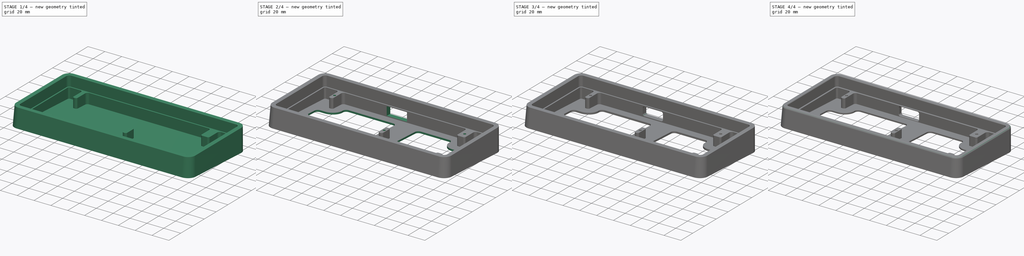
[diagram: build sequence overview — one tinted view per stage of 4, left to right]
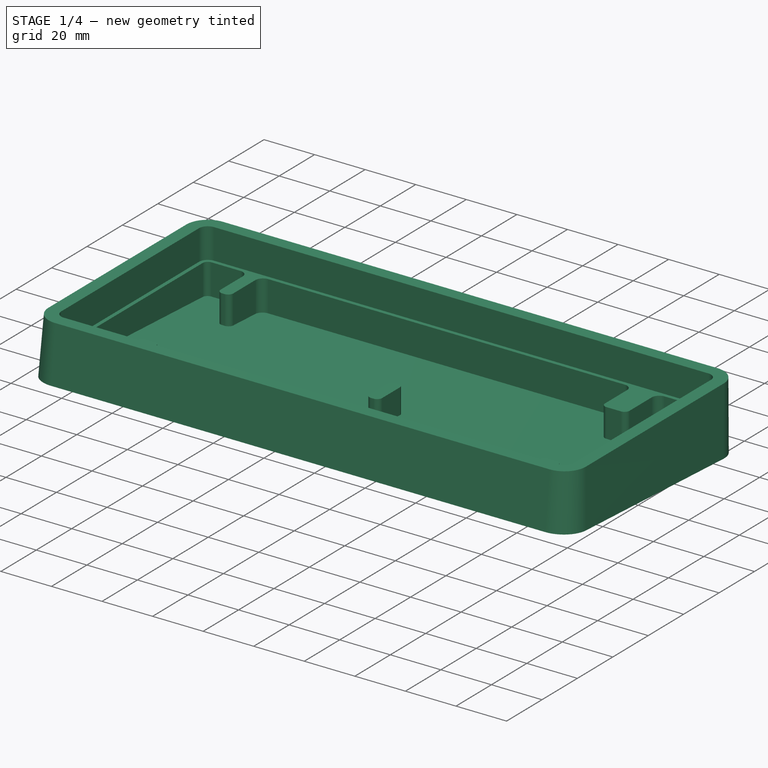
[diagram: stage 1 of 4 — iso view after this stage's code; geometry added in this stage tinted green]
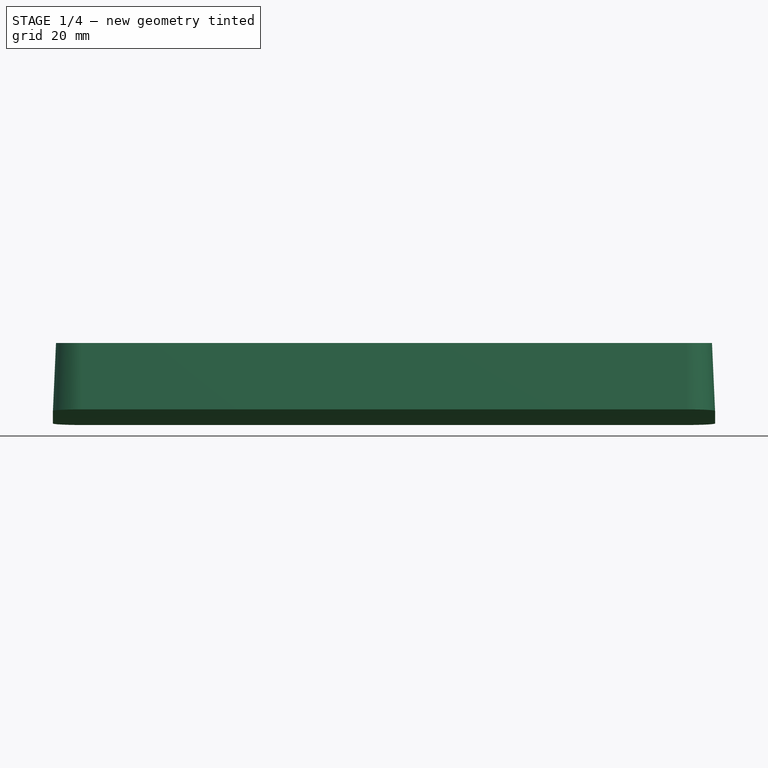
[diagram: stage 1 of 4 — front view after this stage's code; geometry added in this stage tinted green]
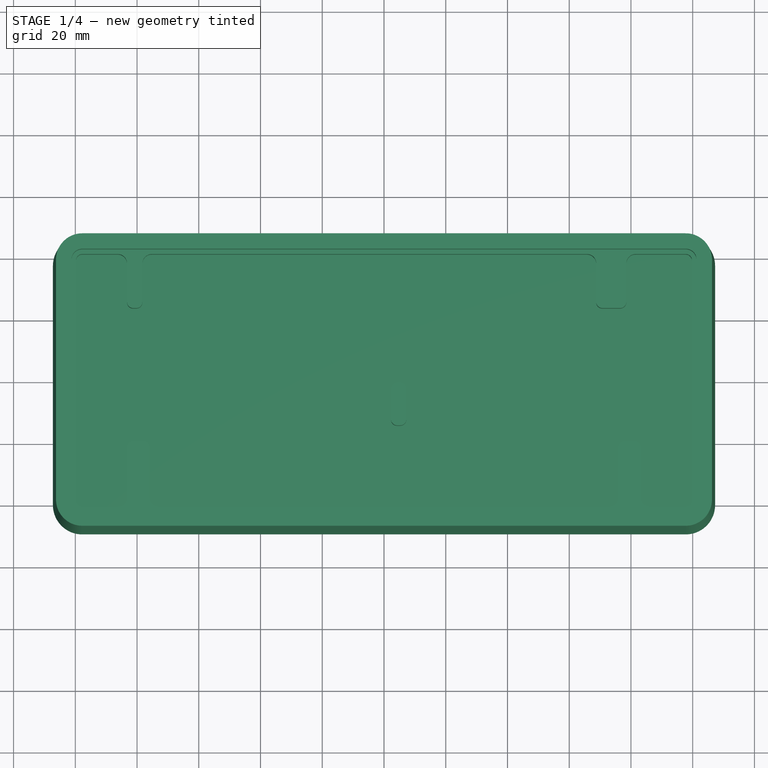
[diagram: stage 1 of 4 — top view after this stage's code; geometry added in this stage tinted green]
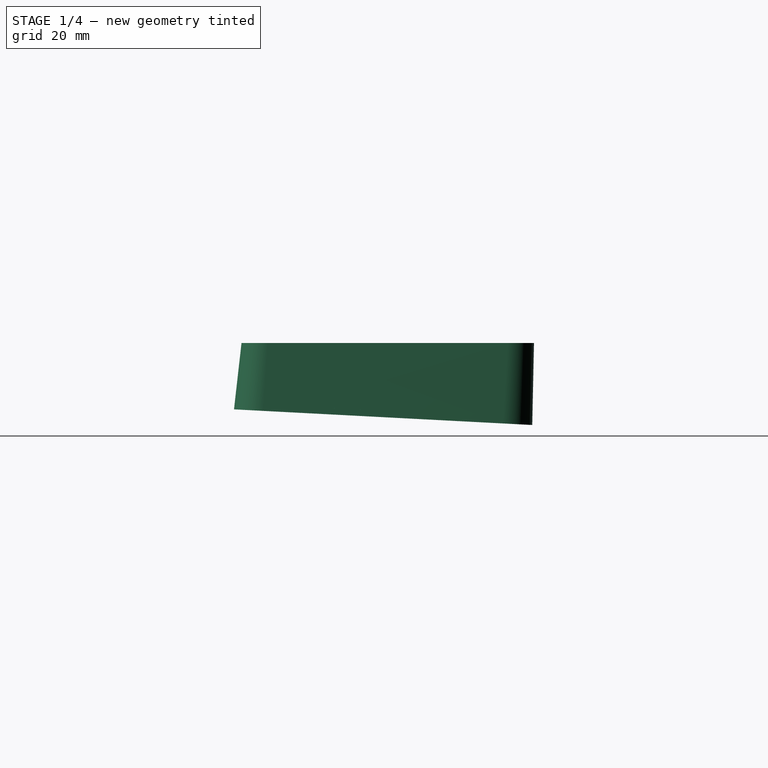
[diagram: stage 1 of 4 — right view after this stage's code; geometry added in this stage tinted green]
FCSTD DOCUMENT  (FreeCAD 0.20R)
Label: case
License: All rights reserved
LicenseURL: http://en.wikipedia.org/wiki/All_rights_reserved
objects: Sketcher::SketchObject×7, PartDesign::Pocket×4, PartDesign::Fillet×4, PartDesign::AdditiveLoft×1, PartDesign::Hole×1, PartDesign::Chamfer×1, PartDesign::Body×1
note: 30 computed .brp shape members not serialized (recipe doc carries the construction recipe); baked Part::Feature solids carry a one-line shape summary decoded from their .brp

FEATURE [Sketcher::SketchObject] Sketch
  AttachmentOffset = pos=(0,-1.5,0) rot=(1,0,0;-0.05236rad)
  FullyConstrained = false
  MapMode = 5
  Placement = pos=(0,-1.5,0) rot=(1,0,0;6.23083rad)
  Support = -> [XY_Plane]
  sketch-geometry (8):
    g0: ArcOfCircle CenterX=97.75 CenterY=39.375 CenterZ=0 NormalX=0 NormalY=0 NormalZ=1 AngleXU=0 Radius=9.5 StartAngle=0 EndAngle=1.5708
    g1: LineSegment StartX=-97.75 StartY=48.875 StartZ=0 EndX=97.75 EndY=48.875 EndZ=0
    g2: LineSegment StartX=107.25 StartY=-38.375 StartZ=0 EndX=107.25 EndY=39.375 EndZ=0
    g3: ArcOfCircle CenterX=97.75 CenterY=-38.375 CenterZ=0 NormalX=0 NormalY=0 NormalZ=1 AngleXU=0 Radius=9.5 StartAngle=4.71239 EndAngle=6.28319
    g4: LineSegment StartX=-97.75 StartY=-47.875 StartZ=0 EndX=97.75 EndY=-47.875 EndZ=0
    g5: ArcOfCircle CenterX=-97.75 CenterY=-38.375 CenterZ=0 NormalX=0 NormalY=0 NormalZ=1 AngleXU=0 Radius=9.5 StartAngle=3.14159 EndAngle=4.71239
    g6: LineSegment StartX=-107.25 StartY=-38.375 StartZ=0 EndX=-107.25 EndY=39.375 EndZ=0
    g7: ArcOfCircle CenterX=-97.75 CenterY=39.375 CenterZ=0 NormalX=0 NormalY=0 NormalZ=1 AngleXU=0 Radius=9.5 StartAngle=1.5708 EndAngle=3.14159
  constraints (8):
    c: Coincident(g5,g6)
    c: Coincident(g6,g7)
    c: Coincident(g4,g5)
    c: Coincident(g1,g7)
    c: Coincident(g3,g4)
    c: Coincident(g0,g1)
    c: Coincident(g2,g3)
    c: Coincident(g0,g2)
FEATURE [Sketcher::SketchObject] Sketch001
  AttachmentOffset = pos=(0,0,24) rot=(1,0,0;0rad)
  FullyConstrained = false
  MapMode = 5
  Placement = pos=(0,0,24) rot=(0,0,1;0rad)
  Support = -> [XY_Plane]
  sketch-geometry (8):
    g0: LineSegment StartX=-97.75 StartY=47.875 StartZ=0 EndX=97.75 EndY=47.875 EndZ=0
    g1: ArcOfCircle CenterX=-97.75 CenterY=39.375 CenterZ=0 NormalX=0 NormalY=0 NormalZ=1 AngleXU=0 Radius=8.5 StartAngle=1.5708 EndAngle=3.14159
    g2: LineSegment StartX=-106.25 StartY=-38.375 StartZ=0 EndX=-106.25 EndY=39.375 EndZ=0
    g3: ArcOfCircle CenterX=-97.75 CenterY=-38.375 CenterZ=0 NormalX=0 NormalY=0 NormalZ=1 AngleXU=0 Radius=8.5 StartAngle=3.14159 EndAngle=4.71239
    g4: LineSegment StartX=-97.75 StartY=-46.875 StartZ=0 EndX=97.75 EndY=-46.875 EndZ=0
    g5: ArcOfCircle CenterX=97.75 CenterY=-38.375 CenterZ=0 NormalX=0 NormalY=0 NormalZ=1 AngleXU=0 Radius=8.5 StartAngle=4.71239 EndAngle=6.28319
    g6: LineSegment StartX=106.25 StartY=-38.375 StartZ=0 EndX=106.25 EndY=39.375 EndZ=0
    g7: ArcOfCircle CenterX=97.75 CenterY=39.375 CenterZ=0 NormalX=0 NormalY=0 NormalZ=1 AngleXU=0 Radius=8.5 StartAngle=0 EndAngle=1.5708
  constraints (8):
    c: Coincident(g2,g3)
    c: Coincident(g1,g2)
    c: Coincident(g3,g4)
    c: Coincident(g0,g1)
    c: Coincident(g4,g5)
    c: Coincident(g0,g7)
    c: Coincident(g5,g6)
    c: Coincident(g6,g7)
FEATURE [PartDesign::AdditiveLoft] AdditiveLoft
  Closed = true
  Profile = -> Sketch
  Ruled = true
  Sections = -> [Sketch001]
FEATURE [Sketcher::SketchObject] Sketch002
  FullyConstrained = false
  MapMode = 5
  Placement = pos=(0,0,24) rot=(0,0,1;0rad)
  Support = -> [AdditiveLoft]
  sketch-geometry (8):
    g0: LineSegment StartX=-97.75 StartY=42.875 StartZ=0 EndX=97.75 EndY=42.875 EndZ=0
    g1: ArcOfCircle CenterX=97.75 CenterY=39.375 CenterZ=0 NormalX=0 NormalY=0 NormalZ=1 AngleXU=0 Radius=3.5 StartAngle=0 EndAngle=1.5708
    g2: LineSegment StartX=101.25 StartY=-38.375 StartZ=0 EndX=101.25 EndY=39.375 EndZ=0
    g3: ArcOfCircle CenterX=97.75 CenterY=-38.375 CenterZ=0 NormalX=0 NormalY=0 NormalZ=1 AngleXU=0 Radius=3.5 StartAngle=4.71239 EndAngle=6.28319
    g4: LineSegment StartX=-97.75 StartY=-41.875 StartZ=0 EndX=97.75 EndY=-41.875 EndZ=0
    g5: ArcOfCircle CenterX=-97.75 CenterY=-38.375 CenterZ=0 NormalX=0 NormalY=0 NormalZ=1 AngleXU=0 Radius=3.5 StartAngle=3.14159 EndAngle=4.71239
    g6: LineSegment StartX=-101.25 StartY=-38.375 StartZ=0 EndX=-101.25 EndY=39.375 EndZ=0
    g7: ArcOfCircle CenterX=-97.75 CenterY=39.375 CenterZ=0 NormalX=0 NormalY=0 NormalZ=1 AngleXU=0 Radius=3.5 StartAngle=1.5708 EndAngle=3.14159
  constraints (8):
    c: Coincident(g5,g6)
    c: Coincident(g6,g7)
    c: Coincident(g4,g5)
    c: Coincident(g0,g7)
    c: Coincident(g3,g4)
    c: Coincident(g0,g1)
    c: Coincident(g2,g3)
    c: Coincident(g1,g2)
FEATURE [PartDesign::Pocket] Pocket
  BaseFeature = -> AdditiveLoft
  Direction = (0,0,-1)
  Length = 12
  Length2 = 5
  Profile = -> Sketch002
  ReferenceAxis = -> Sketch002 [N_Axis]
  Type = 0
FEATURE [Sketcher::SketchObject] Sketch003
  FullyConstrained = false
  MapMode = 5
  Placement = pos=(0,0,12) rot=(0,0,1;0rad)
  Support = -> [Pocket]
  sketch-geometry (48):
    g0: ArcOfCircle CenterX=97.75 CenterY=39.375 CenterZ=0 NormalX=0 NormalY=0 NormalZ=1 AngleXU=0 Radius=2 StartAngle=0 EndAngle=1.5708
    g1: LineSegment StartX=99.75 StartY=-38.375 StartZ=0 EndX=99.75 EndY=39.375 EndZ=0
    g2: ArcOfCircle CenterX=97.75 CenterY=-38.375 CenterZ=0 NormalX=0 NormalY=0 NormalZ=1 AngleXU=0 Radius=2 StartAngle=4.71239 EndAngle=6.28319
    g3: ArcOfCircle CenterX=-97.75 CenterY=-38.375 CenterZ=0 NormalX=0 NormalY=0 NormalZ=1 AngleXU=0 Radius=2 StartAngle=3.14159 EndAngle=4.71239
    g4: LineSegment StartX=-99.75 StartY=-38.375 StartZ=0 EndX=-99.75 EndY=39.375 EndZ=0
    g5: ArcOfCircle CenterX=-97.75 CenterY=39.375 CenterZ=0 NormalX=0 NormalY=0 NormalZ=1 AngleXU=0 Radius=2 StartAngle=1.5708 EndAngle=3.14159
    g6: LineSegment StartX=-97.75 StartY=41.375 StartZ=0 EndX=-86.25 EndY=41.375 EndZ=0
    g7: ArcOfCircle CenterX=-86.25 CenterY=38.375 CenterZ=0 NormalX=0 NormalY=0 NormalZ=1 AngleXU=0 Radius=3 StartAngle=0 EndAngle=1.5708
    g8: ArcOfCircle CenterX=-75.25 CenterY=38.375 CenterZ=0 NormalX=0 NormalY=0 NormalZ=1 AngleXU=0 Radius=3 StartAngle=1.5708 EndAngle=3.14159
    g9: LineSegment StartX=-78.25 StartY=38.375 StartZ=0 EndX=-78.25 EndY=25.875 EndZ=0
    g10: ArcOfCircle CenterX=-80.25 CenterY=25.875 CenterZ=0 NormalX=0 NormalY=0 NormalZ=1 AngleXU=0 Radius=2 StartAngle=4.71239 EndAngle=6.28319
    g11: LineSegment StartX=-80.25 StartY=23.875 StartZ=0 EndX=-81.25 EndY=23.875 EndZ=0
    g12: LineSegment StartX=-83.25 StartY=25.875 StartZ=0 EndX=-83.25 EndY=38.375 EndZ=0
    g13: ArcOfCircle CenterX=-81.25 CenterY=25.875 CenterZ=0 NormalX=0 NormalY=0 NormalZ=1 AngleXU=0 Radius=2 StartAngle=3.14159 EndAngle=4.71239
    g14: ArcOfCircle CenterX=70.75 CenterY=25.875 CenterZ=0 NormalX=0 NormalY=0 NormalZ=1 AngleXU=0 Radius=2 StartAngle=3.14159 EndAngle=4.71239
    g15: LineSegment StartX=76.5 StartY=23.875 StartZ=0 EndX=70.75 EndY=23.875 EndZ=0
    g16: ArcOfCircle CenterX=76.5 CenterY=25.875 CenterZ=0 NormalX=0 NormalY=0 NormalZ=1 AngleXU=0 Radius=2 StartAngle=4.71239 EndAngle=6.28319
    g17: LineSegment StartX=-75.25 StartY=41.375 StartZ=0 EndX=65.75 EndY=41.375 EndZ=0
    g18: LineSegment StartX=68.75 StartY=25.875 StartZ=0 EndX=68.75 EndY=38.375 EndZ=0
    g19: ArcOfCircle CenterX=65.75 CenterY=38.375 CenterZ=0 NormalX=0 NormalY=0 NormalZ=1 AngleXU=0 Radius=3 StartAngle=0 EndAngle=1.5708
    g20: LineSegment StartX=78.5 StartY=38.375 StartZ=0 EndX=78.5 EndY=25.875 EndZ=0
    g21: LineSegment StartX=81.5 StartY=41.375 StartZ=0 EndX=97.75 EndY=41.375 EndZ=0
    g22: ArcOfCircle CenterX=81.5 CenterY=38.375 CenterZ=0 NormalX=0 NormalY=0 NormalZ=1 AngleXU=0 Radius=3 StartAngle=1.5708 EndAngle=3.14159
    g23: ArcOfCircle CenterX=72.875 CenterY=-37.375 CenterZ=0 NormalX=0 NormalY=0 NormalZ=1 AngleXU=0 Radius=3 StartAngle=4.71239 EndAngle=6.28319
    g24: LineSegment StartX=86.25 StartY=-40.375 StartZ=0 EndX=97.75 EndY=-40.375 EndZ=0
    g25: ArcOfCircle CenterX=86.25 CenterY=-37.375 CenterZ=0 NormalX=0 NormalY=0 NormalZ=1 AngleXU=0 Radius=3 StartAngle=3.14159 EndAngle=4.71239
    g26: LineSegment StartX=75.875 StartY=-37.375 StartZ=0 EndX=75.875 EndY=-21.125 EndZ=0
    g27: ArcOfCircle CenterX=77.875 CenterY=-21.125 CenterZ=0 NormalX=0 NormalY=0 NormalZ=1 AngleXU=0 Radius=2 StartAngle=1.5708 EndAngle=3.14159
    g28: LineSegment StartX=77.875 StartY=-19.125 StartZ=0 EndX=81.25 EndY=-19.125 EndZ=0
    g29: LineSegment StartX=83.25 StartY=-21.125 StartZ=0 EndX=83.25 EndY=-37.375 EndZ=0
    g30: ArcOfCircle CenterX=81.25 CenterY=-21.125 CenterZ=0 NormalX=0 NormalY=0 NormalZ=1 AngleXU=0 Radius=2 StartAngle=0 EndAngle=1.5708
    g31: ArcOfCircle CenterX=-81.25 CenterY=-21.125 CenterZ=0 NormalX=0 NormalY=0 NormalZ=1 AngleXU=0 Radius=2 StartAngle=1.5708 EndAngle=3.14159
    g32: LineSegment StartX=-81.25 StartY=-19.125 StartZ=0 EndX=-77.875 EndY=-19.125 EndZ=0
    g33: ArcOfCircle CenterX=-77.875 CenterY=-21.125 CenterZ=0 NormalX=0 NormalY=0 NormalZ=1 AngleXU=0 Radius=2 StartAngle=0 EndAngle=1.5708
    g34: LineSegment StartX=-97.75 StartY=-40.375 StartZ=0 EndX=-86.25 EndY=-40.375 EndZ=0
    g35: LineSegment StartX=-83.25 StartY=-37.375 StartZ=0 EndX=-83.25 EndY=-21.125 EndZ=0
    g36: ArcOfCircle CenterX=-86.25 CenterY=-37.375 CenterZ=0 NormalX=0 NormalY=0 NormalZ=1 AngleXU=0 Radius=3 StartAngle=4.71239 EndAngle=6.28319
    g37: LineSegment StartX=-75.875 StartY=-21.125 StartZ=0 EndX=-75.875 EndY=-37.375 EndZ=0
    g38: LineSegment StartX=-72.875 StartY=-40.375 StartZ=0 EndX=72.875 EndY=-40.375 EndZ=0
    g39: ArcOfCircle CenterX=-72.875 CenterY=-37.375 CenterZ=0 NormalX=0 NormalY=0 NormalZ=1 AngleXU=0 Radius=3 StartAngle=3.14159 EndAngle=4.71239
    g40: ArcOfCircle CenterX=4.25 CenterY=-2.125 CenterZ=0 NormalX=0 NormalY=0 NormalZ=1 AngleXU=0 Radius=2 StartAngle=1.5708 EndAngle=3.14159
    g41: LineSegment StartX=5.25 StartY=-0.125 StartZ=0 EndX=4.25 EndY=-0.125 EndZ=0
    g42: ArcOfCircle CenterX=5.25 CenterY=-2.125 CenterZ=0 NormalX=0 NormalY=0 NormalZ=1 AngleXU=0 Radius=2 StartAngle=0 EndAngle=1.5708
    g43: LineSegment StartX=7.25 StartY=-12.125 StartZ=0 EndX=7.25 EndY=-2.125 EndZ=0
    g44: ArcOfCircle CenterX=5.25 CenterY=-12.125 CenterZ=0 NormalX=0 NormalY=0 NormalZ=1 AngleXU=0 Radius=2 StartAngle=4.71239 EndAngle=6.28319
    g45: LineSegment StartX=4.25 StartY=-14.125 StartZ=0 EndX=5.25 EndY=-14.125 EndZ=0
    g46: LineSegment StartX=2.25 StartY=-2.125 StartZ=0 EndX=2.25 EndY=-12.125 EndZ=0
    g47: ArcOfCircle CenterX=4.25 CenterY=-12.125 CenterZ=0 NormalX=0 NormalY=0 NormalZ=1 AngleXU=0 Radius=2 StartAngle=3.14159 EndAngle=4.71239
  constraints (48):
    c: Coincident(g3,g4)
    c: Coincident(g4,g5)
    c: Coincident(g3,g34)
    c: Coincident(g5,g6)
    c: Coincident(g34,g36)
    c: Coincident(g6,g7)
    c: Coincident(g35,g36)
    c: Coincident(g31,g35)
    c: Coincident(g12,g13)
    c: Coincident(g7,g12)
    c: Coincident(g31,g32)
    c: Coincident(g11,g13)
    c: Coincident(g10,g11)
    c: Coincident(g9,g10)
    c: Coincident(g8,g9)
    c: Coincident(g32,g33)
    c: Coincident(g37,g39)
    c: Coincident(g33,g37)
    c: Coincident(g8,g17)
    c: Coincident(g38,g39)
    c: Coincident(g46,g47)
    c: Coincident(g40,g46)
    c: Coincident(g45,g47)
    c: Coincident(g40,g41)
    c: Coincident(g44,g45)
    c: Coincident(g41,g42)
    c: Coincident(g43,g44)
    c: Coincident(g42,g43)
    c: Coincident(g17,g19)
    c: Coincident(g14,g18)
    c: Coincident(g18,g19)
    c: Coincident(g14,g15)
    c: Coincident(g23,g38)
    c: Coincident(g23,g26)
    c: Coincident(g26,g27)
    c: Coincident(g15,g16)
    c: Coincident(g27,g28)
    c: Coincident(g16,g20)
    c: Coincident(g20,g22)
    c: Coincident(g28,g30)
    c: Coincident(g21,g22)
    c: Coincident(g25,g29)
    c: Coincident(g29,g30)
    c: Coincident(g24,g25)
    c: Coincident(g2,g24)
    c: Coincident(g0,g21)
    c: Coincident(g1,g2)
    c: Coincident(g0,g1)
FEATURE [PartDesign::Pocket] Pocket001
  BaseFeature = -> Pocket
  Direction = (0,0,-1)
  Length = 0
  Length2 = 5
  Offset = -2
  Profile = -> Sketch003
  ReferenceAxis = -> Sketch003 [N_Axis]
  Type = 3
  UpToFace = -> Pocket [Face1]
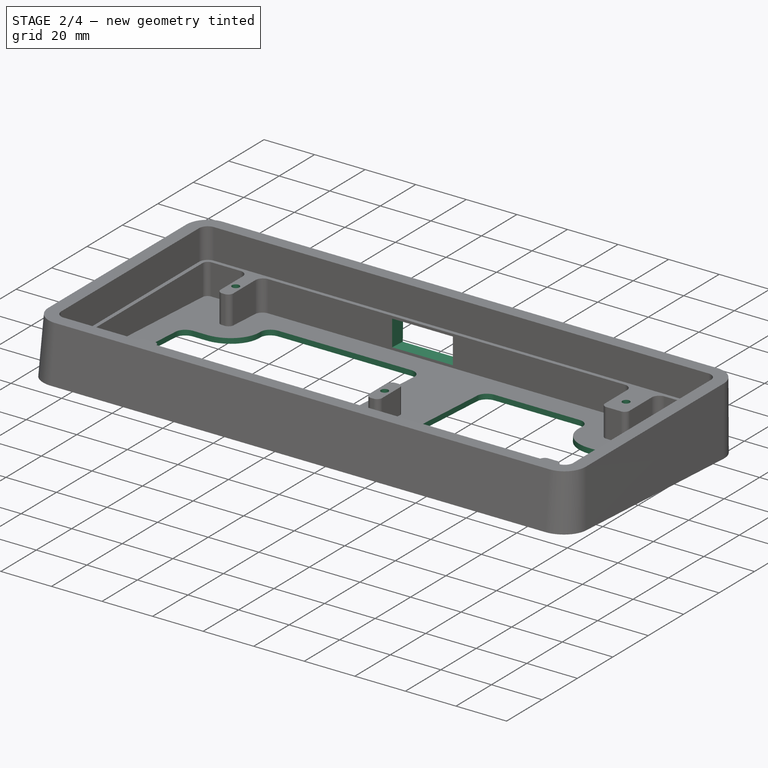
[diagram: stage 2 of 4 — iso view after this stage's code; geometry added in this stage tinted green]
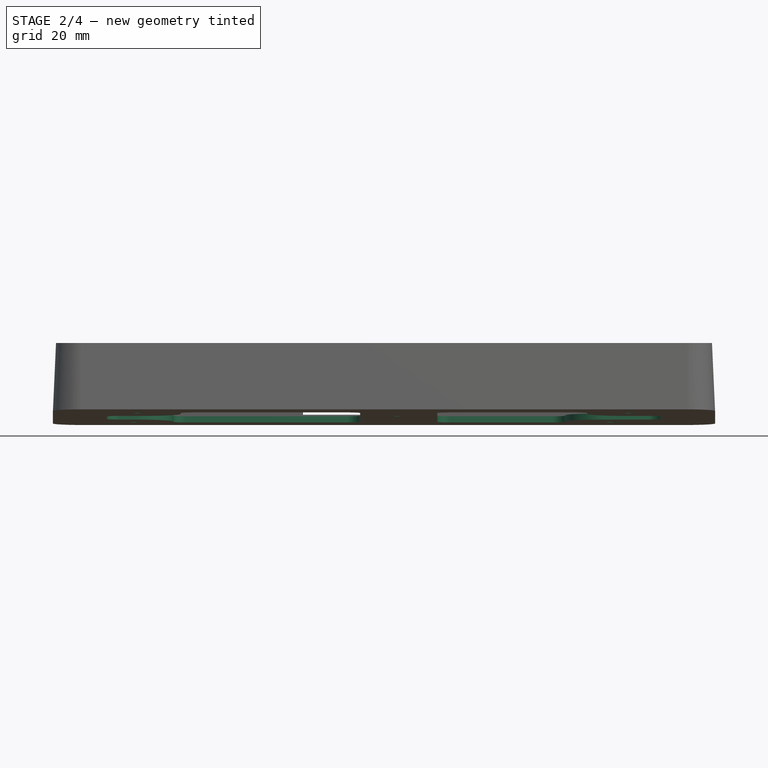
[diagram: stage 2 of 4 — front view after this stage's code; geometry added in this stage tinted green]
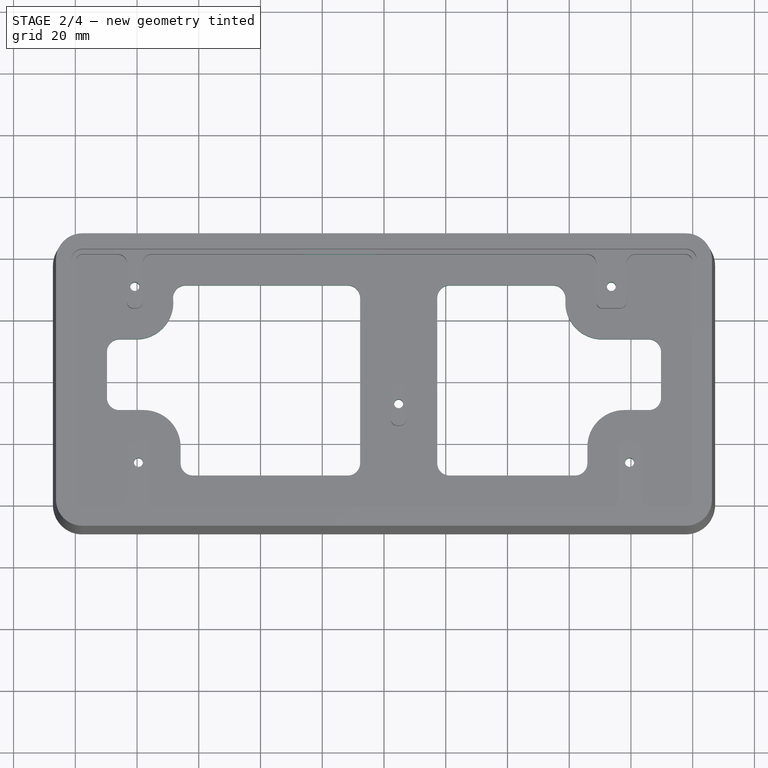
[diagram: stage 2 of 4 — top view after this stage's code; geometry added in this stage tinted green]
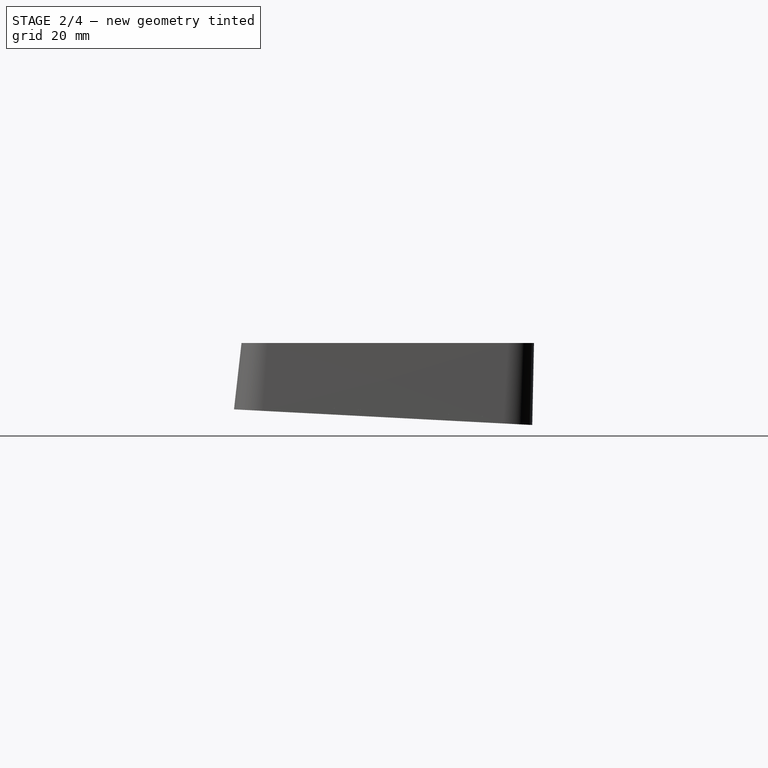
[diagram: stage 2 of 4 — right view after this stage's code; geometry added in this stage tinted green]
FEATURE [Sketcher::SketchObject] Sketch004
  FullyConstrained = false
  MapMode = 5
  Placement = pos=(0,0,12) rot=(0,0,1;0rad)
  Support = -> [Pocket]
  sketch-geometry (5):
    g0: Circle CenterX=4.75 CenterY=-7.125 CenterZ=0 NormalX=0 NormalY=0 NormalZ=-1 AngleXU=0 Radius=1.1
    g1: Circle CenterX=73.625 CenterY=30.875 CenterZ=0 NormalX=0 NormalY=0 NormalZ=-1 AngleXU=0 Radius=1.1
    g2: Circle CenterX=79.5625 CenterY=-26.125 CenterZ=0 NormalX=0 NormalY=0 NormalZ=-1 AngleXU=0 Radius=1.1
    g3: Circle CenterX=-80.75 CenterY=30.875 CenterZ=0 NormalX=0 NormalY=0 NormalZ=-1 AngleXU=0 Radius=1.1
    g4: Circle CenterX=-79.5625 CenterY=-26.125 CenterZ=0 NormalX=0 NormalY=0 NormalZ=-1 AngleXU=0 Radius=1.1
FEATURE [PartDesign::Hole] Hole
  BaseFeature = -> Pocket001
  CustomThreadClearance = 0
  Depth = 25
  DepthType = 0
  Diameter = 2.9
  DrillForDepth = false
  DrillPoint = 1
  DrillPointAngle = 118
  HoleCutCountersinkAngle = 90
  HoleCutCustomValues = false
  HoleCutDepth = 0
  HoleCutDiameter = 6.1
  HoleCutType = 0
  ModelThread = false
  Profile = -> Sketch004
  Tapered = false
  TaperedAngle = 90
  ThreadClass = 0
  ThreadDepth = 25
  ThreadDepthType = 0
  ThreadDirection = 0
  ThreadFit = 0
  ThreadSize = 8
  ThreadType = 1
  Threaded = false
  UseCustomThreadClearance = false
FEATURE [Sketcher::SketchObject] Sketch005
  FullyConstrained = false
  MapMode = 5
  Placement = pos=(0,0.10042,1.91613) rot=(-1,0,0;0.05236rad)
  Support = -> [Hole]
  sketch-geometry (31):
    g0: ArcOfCircle CenterX=-77.875 CenterY=-21.125 CenterZ=0 NormalX=0 NormalY=0 NormalZ=1 AngleXU=0 Radius=12 StartAngle=0 EndAngle=1.5708
    g1: ArcOfCircle CenterX=70.75 CenterY=25.875 CenterZ=0 NormalX=0 NormalY=0 NormalZ=1 AngleXU=0 Radius=12 StartAngle=3.14159 EndAngle=4.71239
    g2: ArcOfCircle CenterX=77.875 CenterY=-21.125 CenterZ=0 NormalX=0 NormalY=0 NormalZ=1 AngleXU=0 Radius=12 StartAngle=1.5708 EndAngle=3.14159
    g3: LineSegment StartX=-77.875 StartY=-9.125 StartZ=0 EndX=-85.75 EndY=-9.125 EndZ=0
    g4: ArcOfCircle CenterX=-85.75 CenterY=-5.125 CenterZ=0 NormalX=0 NormalY=0 NormalZ=1 AngleXU=0 Radius=4 StartAngle=3.14159 EndAngle=4.71239
    g5: LineSegment StartX=-89.75 StartY=-5.125 StartZ=0 EndX=-89.75 EndY=9.875 EndZ=0
    g6: LineSegment StartX=-80.25 StartY=13.875 StartZ=0 EndX=-85.75 EndY=13.875 EndZ=0
    g7: ArcOfCircle CenterX=-85.75 CenterY=9.875 CenterZ=0 NormalX=0 NormalY=0 NormalZ=1 AngleXU=0 Radius=4 StartAngle=1.5708 EndAngle=3.14159
    g8: ArcOfCircle CenterX=-80.25 CenterY=25.875 CenterZ=0 NormalX=0 NormalY=0 NormalZ=1 AngleXU=0 Radius=12 StartAngle=4.71239 EndAngle=6.37707
    g9: ArcOfCircle CenterX=-64.3205 CenterY=27.375 CenterZ=0 NormalX=0 NormalY=0 NormalZ=1 AngleXU=0 Radius=4 StartAngle=1.5708 EndAngle=3.23548
    g10: LineSegment StartX=-65.875 StartY=-21.125 StartZ=0 EndX=-65.875 EndY=-26.375 EndZ=0
    g11: ArcOfCircle CenterX=-61.875 CenterY=-26.375 CenterZ=0 NormalX=0 NormalY=0 NormalZ=1 AngleXU=0 Radius=4 StartAngle=3.14159 EndAngle=4.71239
    g12: LineSegment StartX=58.75 StartY=25.875 StartZ=0 EndX=58.75 EndY=27.375 EndZ=0
    g13: ArcOfCircle CenterX=54.75 CenterY=27.375 CenterZ=0 NormalX=0 NormalY=0 NormalZ=1 AngleXU=0 Radius=4 StartAngle=0 EndAngle=1.5708
    g14: LineSegment StartX=85.75 StartY=13.875 StartZ=0 EndX=70.75 EndY=13.875 EndZ=0
    g15: ArcOfCircle CenterX=85.75 CenterY=9.875 CenterZ=0 NormalX=0 NormalY=0 NormalZ=1 AngleXU=0 Radius=4 StartAngle=0 EndAngle=1.5708
    g16: LineSegment StartX=89.75 StartY=-5.125 StartZ=0 EndX=89.75 EndY=9.875 EndZ=0
    g17: LineSegment StartX=85.75 StartY=-9.125 StartZ=0 EndX=77.875 EndY=-9.125 EndZ=0
    g18: ArcOfCircle CenterX=85.75 CenterY=-5.125 CenterZ=0 NormalX=0 NormalY=0 NormalZ=1 AngleXU=0 Radius=4 StartAngle=4.71239 EndAngle=6.28319
    g19: LineSegment StartX=65.875 StartY=-21.125 StartZ=0 EndX=65.875 EndY=-26.375 EndZ=0
    g20: ArcOfCircle CenterX=61.875 CenterY=-26.375 CenterZ=0 NormalX=0 NormalY=0 NormalZ=1 AngleXU=0 Radius=4 StartAngle=4.71239 EndAngle=6.28319
    g21: LineSegment StartX=21.25 StartY=31.375 StartZ=0 EndX=54.75 EndY=31.375 EndZ=0
    g22: ArcOfCircle CenterX=21.25 CenterY=27.375 CenterZ=0 NormalX=0 NormalY=0 NormalZ=1 AngleXU=0 Radius=4 StartAngle=1.5708 EndAngle=3.14159
    g23: LineSegment StartX=17.25 StartY=-26.375 StartZ=0 EndX=17.25 EndY=27.375 EndZ=0
    g24: LineSegment StartX=21.25 StartY=-30.375 StartZ=0 EndX=61.875 EndY=-30.375 EndZ=0
    g25: ArcOfCircle CenterX=21.25 CenterY=-26.375 CenterZ=0 NormalX=0 NormalY=0 NormalZ=1 AngleXU=0 Radius=4 StartAngle=3.14159 EndAngle=4.71239
    g26: LineSegment StartX=-61.875 StartY=-30.375 StartZ=0 EndX=-11.75 EndY=-30.375 EndZ=0
    g27: ArcOfCircle CenterX=-11.75 CenterY=-26.375 CenterZ=0 NormalX=0 NormalY=0 NormalZ=1 AngleXU=0 Radius=4 StartAngle=4.71239 EndAngle=6.28319
    g28: LineSegment StartX=-64.3205 StartY=31.375 StartZ=0 EndX=-11.75 EndY=31.375 EndZ=0
    g29: LineSegment StartX=-7.75 StartY=27.375 StartZ=0 EndX=-7.75 EndY=-26.375 EndZ=0
    g30: ArcOfCircle CenterX=-11.75 CenterY=27.375 CenterZ=0 NormalX=0 NormalY=0 NormalZ=1 AngleXU=0 Radius=4 StartAngle=0 EndAngle=1.5708
  constraints (31):
    c: Coincident(g4,g5)
    c: Coincident(g5,g7)
    c: Coincident(g3,g4)
    c: Coincident(g6,g7)
    c: Coincident(g6,g8)
    c: Coincident(g0,g3)
    c: Coincident(g8,g9)
    c: Coincident(g10,g11)
    c: Coincident(g0,g10)
    c: Coincident(g9,g28)
    c: Coincident(g11,g26)
    c: Coincident(g26,g27)
    c: Coincident(g28,g30)
    c: Coincident(g27,g29)
    c: Coincident(g29,g30)
    c: Coincident(g23,g25)
    c: Coincident(g22,g23)
    c: Coincident(g24,g25)
    c: Coincident(g21,g22)
    c: Coincident(g13,g21)
    c: Coincident(g1,g12)
    c: Coincident(g12,g13)
    c: Coincident(g20,g24)
    c: Coincident(g19,g20)
    c: Coincident(g2,g19)
    c: Coincident(g1,g14)
    c: Coincident(g2,g17)
    c: Coincident(g17,g18)
    c: Coincident(g14,g15)
    c: Coincident(g16,g18)
    c: Coincident(g15,g16)
FEATURE [PartDesign::Pocket] Pocket002
  BaseFeature = -> Hole
  Direction = (0,-0.052336,-0.99863)
  Length = 5
  Length2 = 5
  Profile = -> Sketch005
  ReferenceAxis = -> Sketch005 [N_Axis]
  Type = 1
FEATURE [Sketcher::SketchObject] Sketch006
  AttachmentOffset = pos=(0,0,-1) rot=(0,0,1;0rad)
  FullyConstrained = false
  MapMode = 5
  Placement = pos=(0,0,11) rot=(0,0,1;0rad)
  Support = -> [Pocket]
  sketch-geometry (4):
    g0: LineSegment StartX=-26.25 StartY=23.875 StartZ=0 EndX=-2.25 EndY=23.875 EndZ=0
    g1: LineSegment StartX=-26.25 StartY=23.875 StartZ=0 EndX=-26.25 EndY=70 EndZ=0
    g2: LineSegment StartX=-2.25 StartY=23.875 StartZ=0 EndX=-2.25 EndY=70 EndZ=0
    g3: LineSegment StartX=-26.25 StartY=70 StartZ=0 EndX=-2.25 EndY=70 EndZ=0
FEATURE [PartDesign::Pocket] Pocket003
  BaseFeature = -> Pocket002
  Direction = (0,0,-1)
  Length = 0
  Length2 = 5
  Offset = -1
  Profile = -> Sketch006
  ReferenceAxis = -> Sketch006 [N_Axis]
  Type = 3
  UpToFace = -> Pocket002 [Face48]
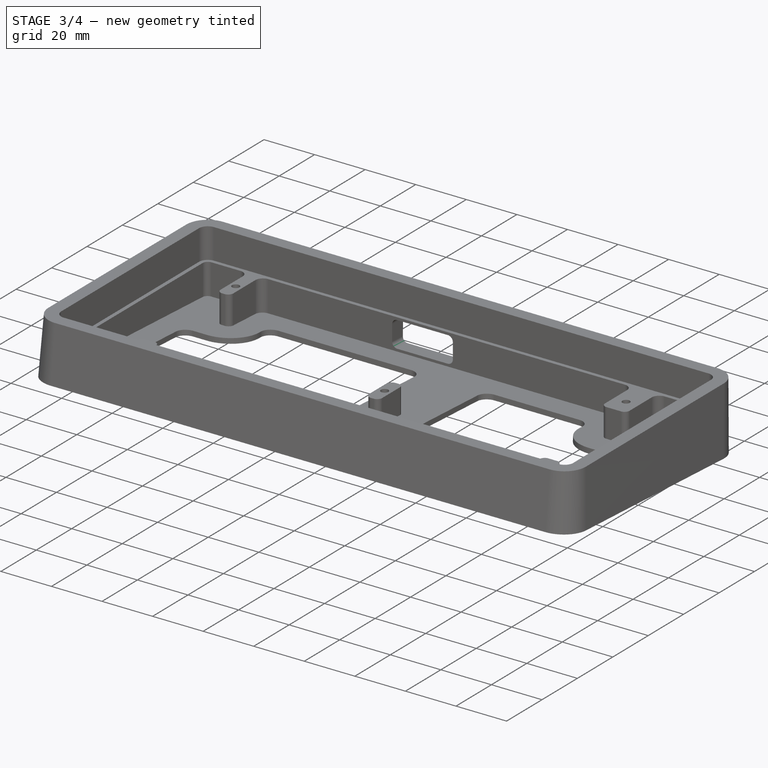
[diagram: stage 3 of 4 — iso view after this stage's code; geometry added in this stage tinted green]
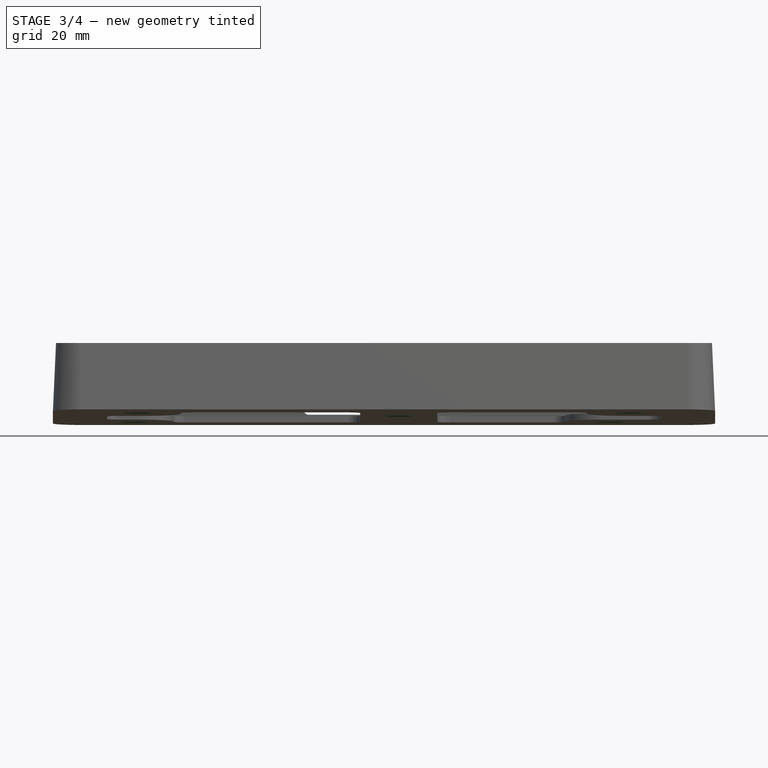
[diagram: stage 3 of 4 — front view after this stage's code; geometry added in this stage tinted green]
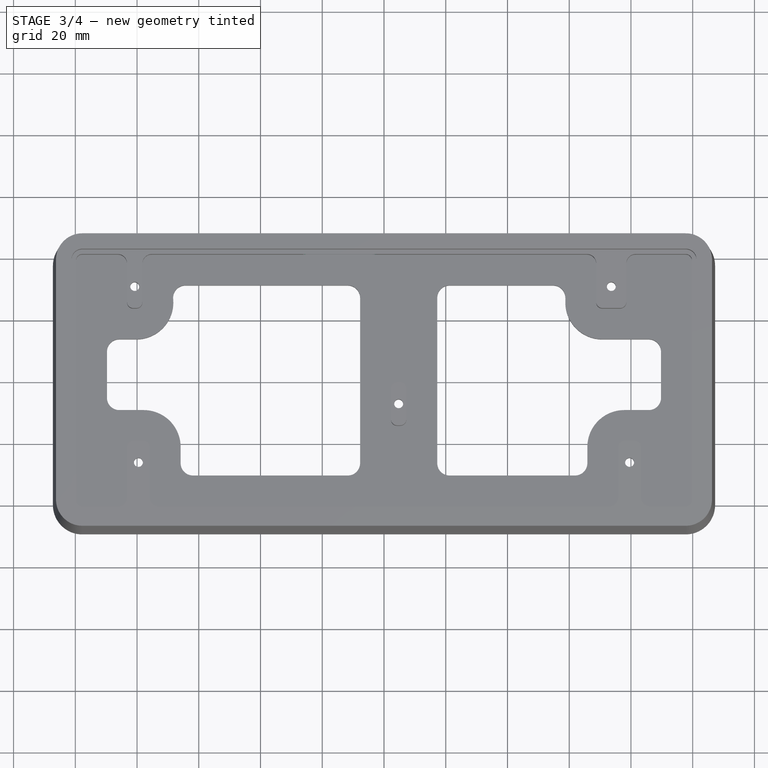
[diagram: stage 3 of 4 — top view after this stage's code; geometry added in this stage tinted green]
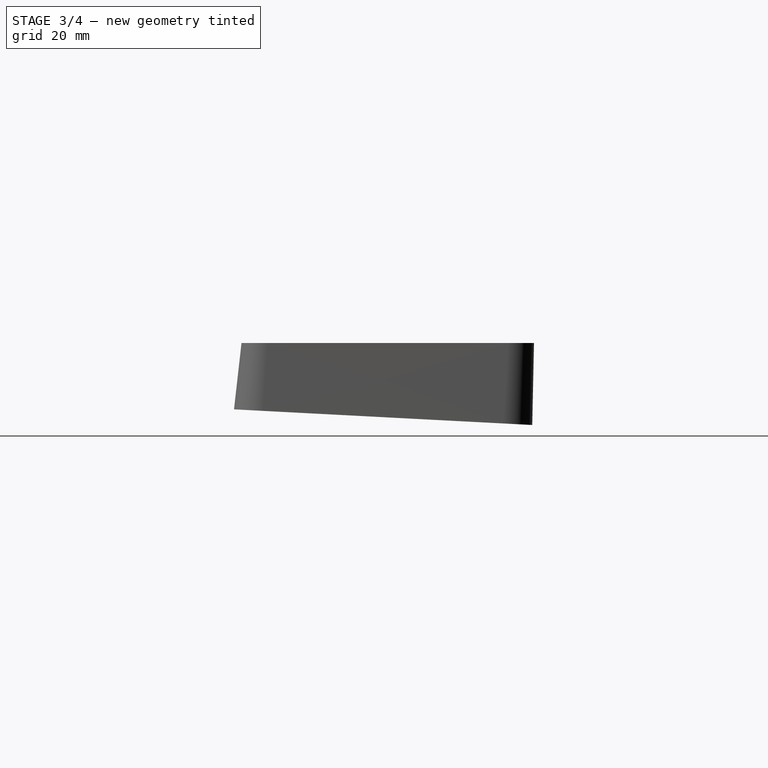
[diagram: stage 3 of 4 — right view after this stage's code; geometry added in this stage tinted green]
FEATURE [PartDesign::Chamfer] Chamfer
  Angle = 45
  Base = -> Pocket003 [Edge9,Edge27,Edge26,Edge28,Edge44]
  BaseFeature = -> Pocket003
  ChamferType = 0
  FlipDirection = false
  Size = 3
  Size2 = 1
  SupportTransform = false
  UseAllEdges = false
FEATURE [PartDesign::Fillet] Fillet
  Base = -> Chamfer [Edge153,Edge147,Edge148,Edge150]
  BaseFeature = -> Chamfer
  Radius = 2
  SupportTransform = false
  UseAllEdges = false
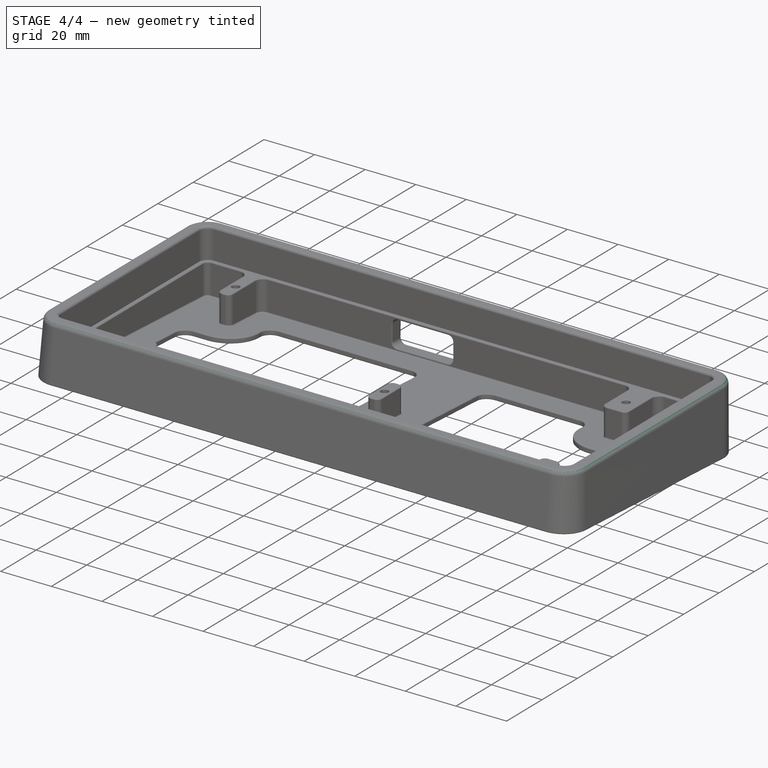
[diagram: stage 4 of 4 — iso view after this stage's code; geometry added in this stage tinted green]
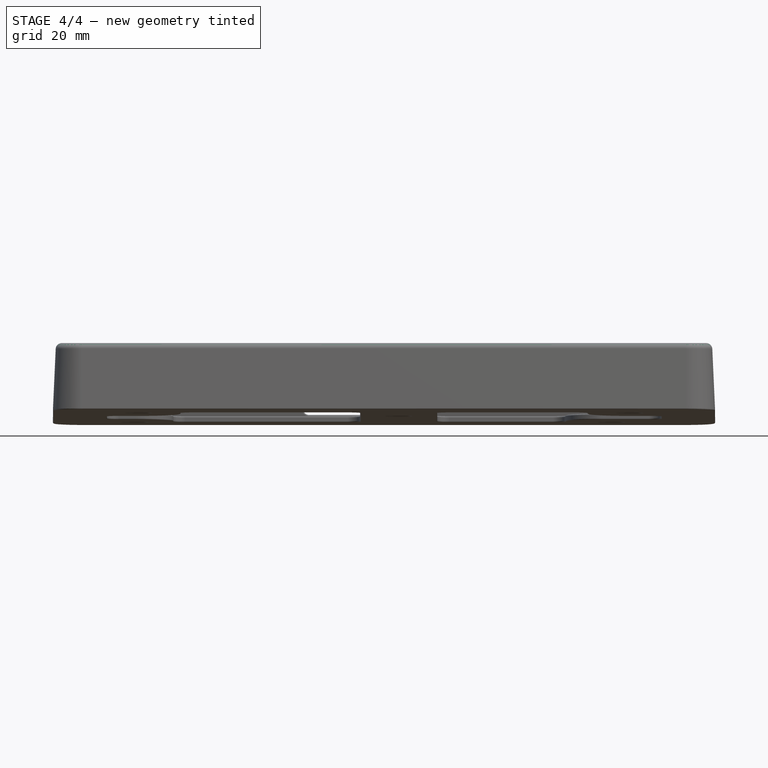
[diagram: stage 4 of 4 — front view after this stage's code; geometry added in this stage tinted green]
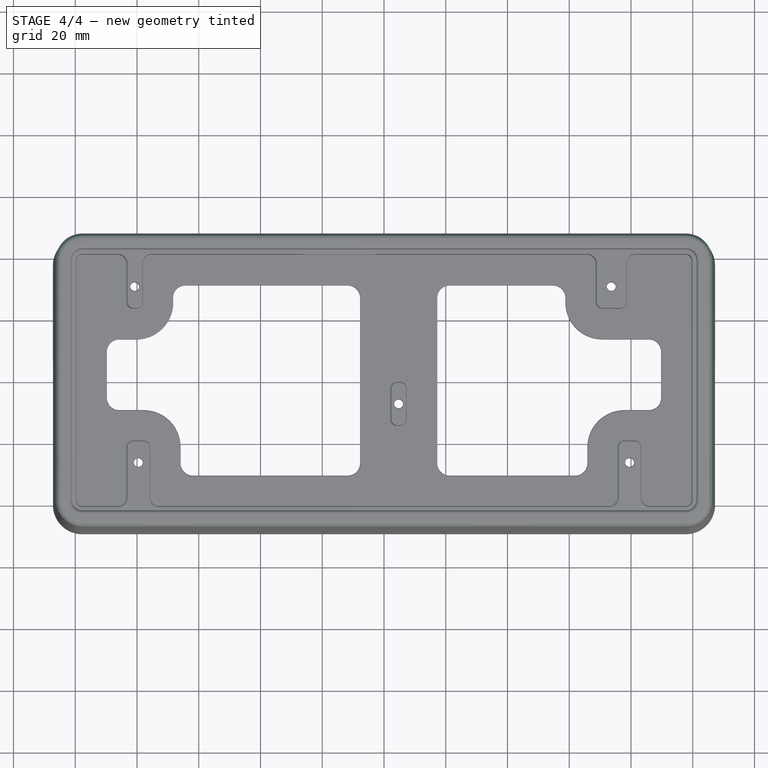
[diagram: stage 4 of 4 — top view after this stage's code; geometry added in this stage tinted green]
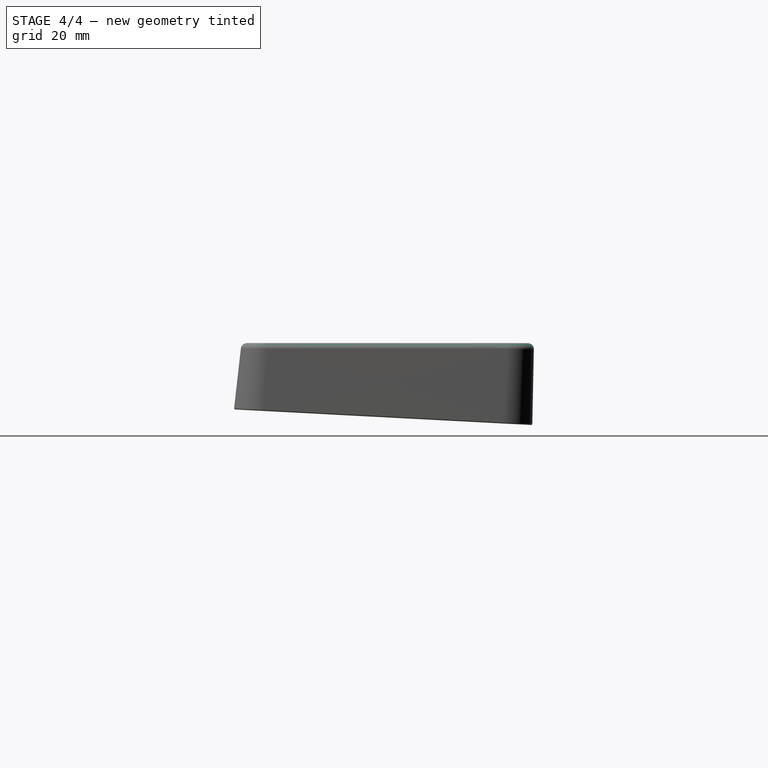
[diagram: stage 4 of 4 — right view after this stage's code; geometry added in this stage tinted green]
FEATURE [PartDesign::Fillet] Fillet001
  Base = -> Fillet [Edge89,Face67,Edge21,Face118,Edge187,Edge185,Edge227,Edge186,Face10]
  BaseFeature = -> Fillet
  Radius = 0.4
  SupportTransform = false
  UseAllEdges = false
FEATURE [PartDesign::Fillet] Fillet003
  Base = -> Fillet001 [Edge5,Edge24]
  BaseFeature = -> Fillet001
  Radius = 2
  SupportTransform = false
  UseAllEdges = false
FEATURE [PartDesign::Fillet] Fillet004
  Base = -> Fillet003 [Edge59]
  BaseFeature = -> Fillet003
  Radius = 1
  SupportTransform = false
  UseAllEdges = false
FEATURE [PartDesign::Body] Body
  Group = -> [Sketch,Sketch001,AdditiveLoft,Sketch002,Pocket,Sketch003,Pocket001,Sketch004,Hole,Sketch005,Pocket002,Sketch006,Pocket003,Chamfer,Fillet,Fillet001,Fillet003,Fillet004]
  Origin = -> Origin
  Placement = pos=(0,0,0) rot=(1,0,0;0.05236rad)
  Tip = -> Fillet004
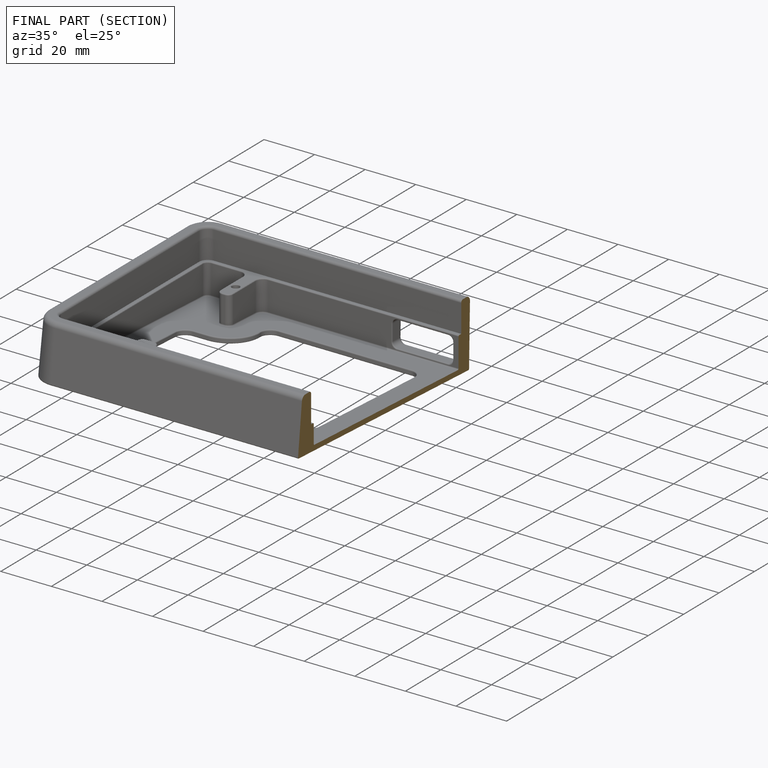
[diagram: finished part — half-section view (interior)]
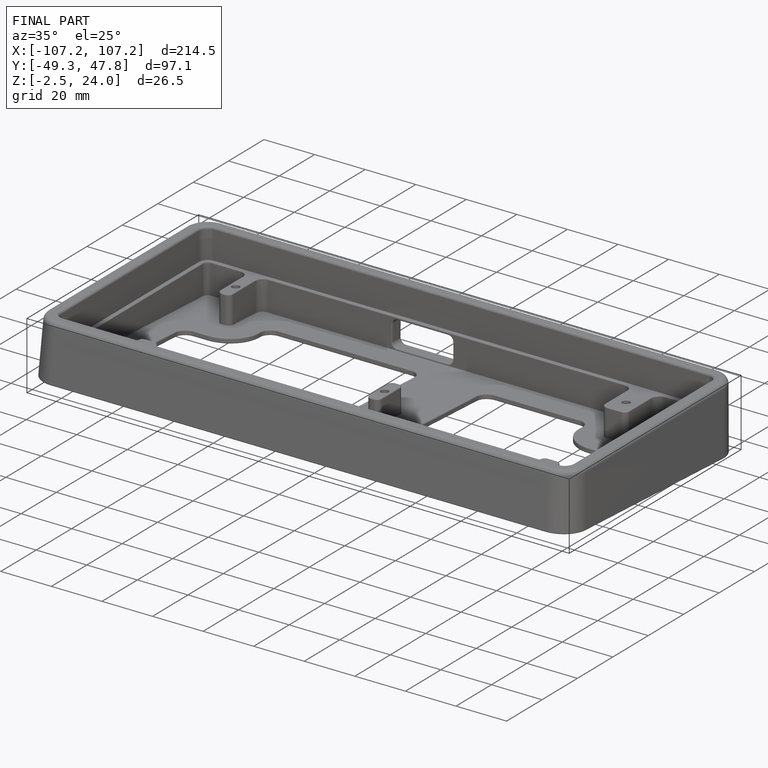
[diagram: finished part — iso view with bounding-box wireframe]
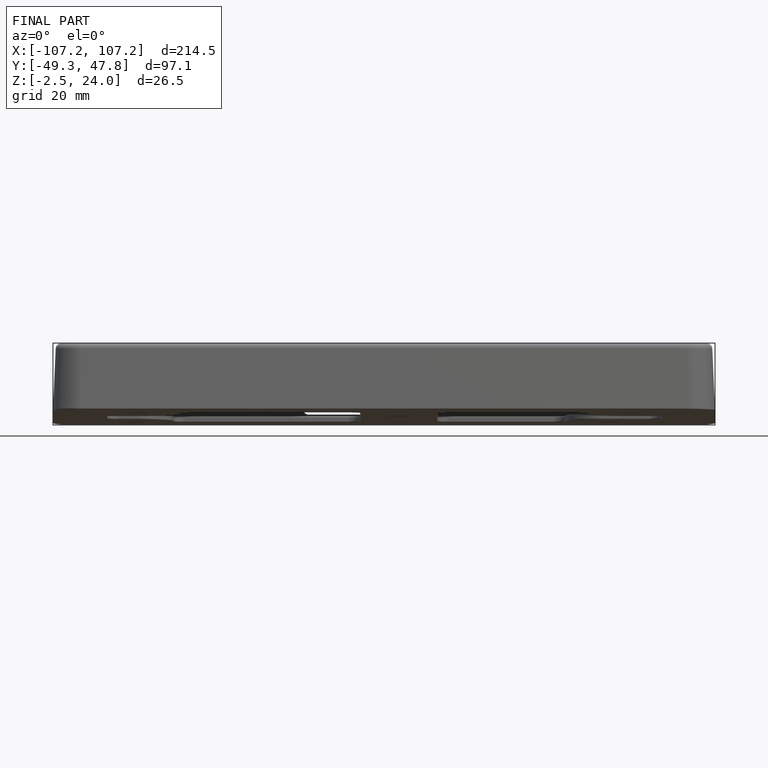
[diagram: finished part — front view with bounding-box wireframe]
